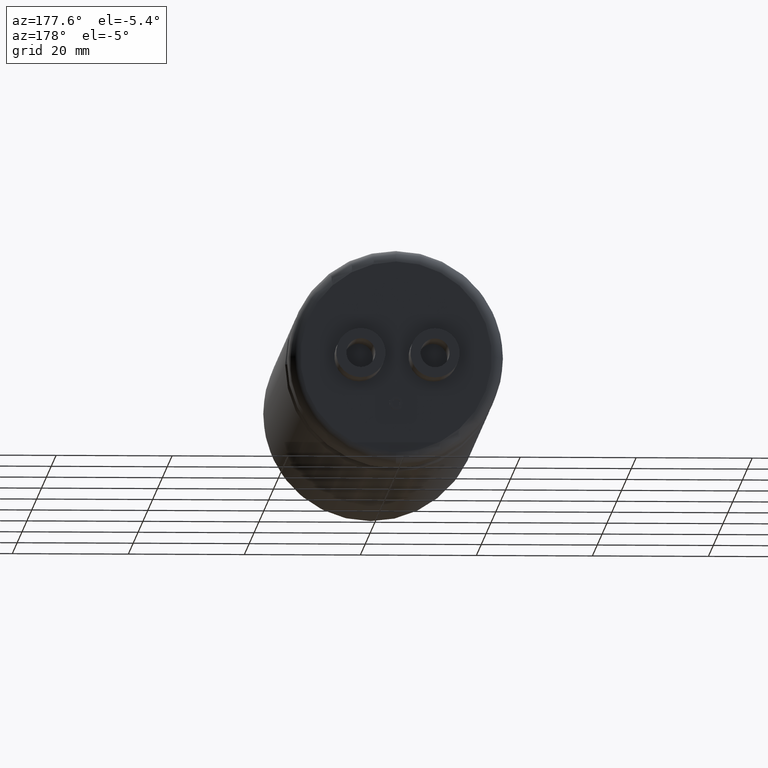
[diagram: clean part render]
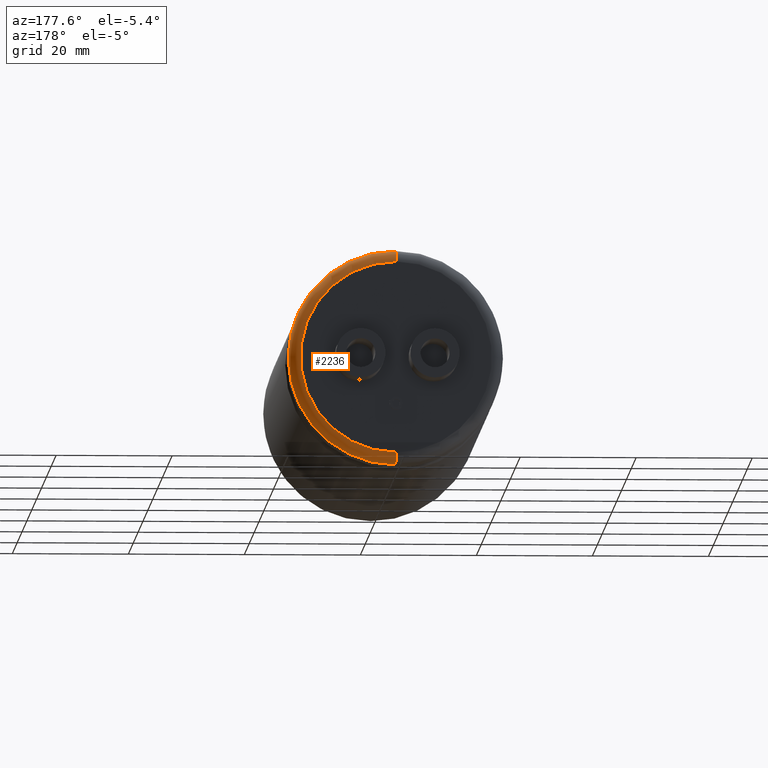
[diagram: same view with one face highlighted and labeled with its STEP entity id]
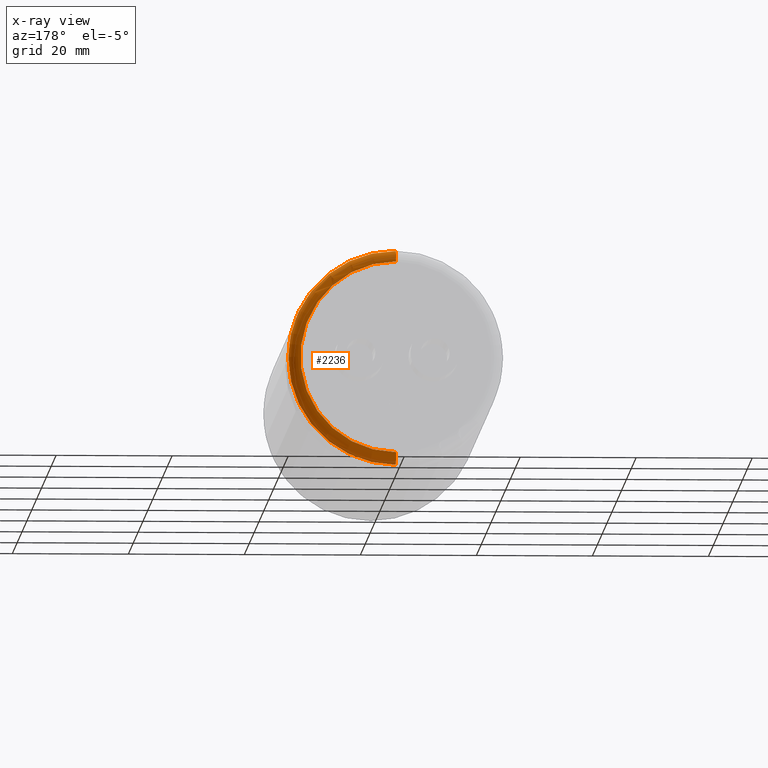
[diagram: x-ray of the same camera — body ghosted, the highlighted face saturated]
A machine part, auxiliary view. The second image highlights one B-rep face of the part: STEP entity #2236.
The next image is the same camera in x-ray: the body ghosted, the highlighted face saturated — about 0% of this face is hidden behind the body in this view.
In plain terms, the highlighted toroidal blend (fillet) surface has major radius 16.5 mm and minor (blend) radius 2 mm.
Its self-contained STEP definition (entity closure, byte-faithful):
#323 = CIRCLE ( 'NONE', #3260, 2.000000000000001800 ) ;
#437 = DIRECTION ( 'NONE',  ( 0.0000000000000000000, 0.0000000000000000000, 1.000000000000000000 ) ) ;
#591 = DIRECTION ( 'NONE',  ( -1.000000000000000000, 0.0000000000000000000, 0.0000000000000000000 ) ) ;
#606 = CARTESIAN_POINT ( 'NONE',  ( 0.0000000000000000000, 105.0000000000000000, 16.50000000000000000 ) ) ;
#658 = DIRECTION ( 'NONE',  ( 0.0000000000000000000, 0.0000000000000000000, 1.000000000000000000 ) ) ;
#750 = AXIS2_PLACEMENT_3D ( 'NONE', #2419, #1115, #437 ) ;
#780 = EDGE_LOOP ( 'NONE', ( #3649, #1371, #3067, #4107 ) ) ;
#988 = EDGE_CURVE ( 'NONE', #2586, #1160, #2307, .T. ) ;
#1008 = AXIS2_PLACEMENT_3D ( 'NONE', #1701, #2406, #3056 ) ;
#1115 = DIRECTION ( 'NONE',  ( -0.0000000000000000000, -1.000000000000000000, -0.0000000000000000000 ) ) ;
#1160 = VERTEX_POINT ( 'NONE', #3684 ) ;
#1186 = CARTESIAN_POINT ( 'NONE',  ( 0.0000000000000000000, 105.0000000000000000, -18.50000000000000000 ) ) ;
#1350 = VERTEX_POINT ( 'NONE', #1186 ) ;
#1371 = ORIENTED_EDGE ( 'NONE', *, *, #1854, .T. ) ;
#1548 = EDGE_CURVE ( 'NONE', #1936, #2586, #3493, .T. ) ;
#1701 = CARTESIAN_POINT ( 'NONE',  ( 0.0000000000000000000, 107.0000000000000000, 0.0000000000000000000 ) ) ;
#1782 = DIRECTION ( 'NONE',  ( 1.000000000000000000, -0.0000000000000000000, 1.224646799147353200E-016 ) ) ;
#1809 = AXIS2_PLACEMENT_3D ( 'NONE', #606, #591, #3175 ) ;
#1854 = EDGE_CURVE ( 'NONE', #1350, #1160, #323, .T. ) ;
#1936 = VERTEX_POINT ( 'NONE', #4211 ) ;
#2236 = ADVANCED_FACE ( 'NONE', ( #3173 ), #4160, .T. ) ;
#2307 = CIRCLE ( 'NONE', #1008, 16.50000000000000000 ) ;
#2318 = CIRCLE ( 'NONE', #750, 18.50000000000000000 ) ;
#2406 = DIRECTION ( 'NONE',  ( 0.0000000000000000000, 1.000000000000000000, 0.0000000000000000000 ) ) ;
#2419 = CARTESIAN_POINT ( 'NONE',  ( 0.0000000000000000000, 105.0000000000000000, 0.0000000000000000000 ) ) ;
#2474 = CARTESIAN_POINT ( 'NONE',  ( 0.0000000000000000000, 107.0000000000000000, 16.50000000000000000 ) ) ;
#2534 = EDGE_CURVE ( 'NONE', #1350, #1936, #2318, .T. ) ;
#2586 = VERTEX_POINT ( 'NONE', #2474 ) ;
#3056 = DIRECTION ( 'NONE',  ( 0.0000000000000000000, 0.0000000000000000000, 1.000000000000000000 ) ) ;
#3067 = ORIENTED_EDGE ( 'NONE', *, *, #988, .F. ) ;
#3173 = FACE_OUTER_BOUND ( 'NONE', #780, .T. ) ;
#3175 = DIRECTION ( 'NONE',  ( 0.0000000000000000000, 0.0000000000000000000, 1.000000000000000000 ) ) ;
#3218 = DIRECTION ( 'NONE',  ( 0.0000000000000000000, 1.000000000000000000, 0.0000000000000000000 ) ) ;
#3260 = AXIS2_PLACEMENT_3D ( 'NONE', #3722, #1782, #4048 ) ;
#3374 = AXIS2_PLACEMENT_3D ( 'NONE', #3784, #3218, #658 ) ;
#3493 = CIRCLE ( 'NONE', #1809, 2.000000000000001800 ) ;
#3649 = ORIENTED_EDGE ( 'NONE', *, *, #2534, .F. ) ;
#3684 = CARTESIAN_POINT ( 'NONE',  ( 2.143131898507868200E-015, 107.0000000000000000, -16.50000000000000000 ) ) ;
#3722 = CARTESIAN_POINT ( 'NONE',  ( 2.020667218593133100E-015, 105.0000000000000000, -16.50000000000000000 ) ) ;
#3784 = CARTESIAN_POINT ( 'NONE',  ( 0.0000000000000000000, 105.0000000000000000, 0.0000000000000000000 ) ) ;
#4048 = DIRECTION ( 'NONE',  ( 1.224646799147351500E-016, 0.0000000000000000000, -1.000000000000000000 ) ) ;
#4107 = ORIENTED_EDGE ( 'NONE', *, *, #1548, .F. ) ;
#4160 = TOROIDAL_SURFACE ( 'NONE', #3374, 16.50000000000000000, 2.000000000000000000 ) ;
#4211 = CARTESIAN_POINT ( 'NONE',  ( 2.265596578422603400E-015, 105.0000000000000000, 18.50000000000000000 ) ) ;